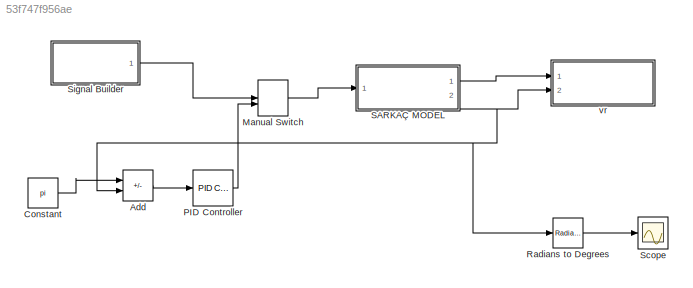
MODEL slx_53f747f956ae
KIND model
CONFIG AbsTol = auto
CONFIG EnableMultiTasking = off
CONFIG FixedStep = auto
CONFIG MaxStep = auto
CONFIG MinStep = auto
CONFIG RelTol = 1e-3
CONFIG SampleTimeConstraint = Unconstrained
CONFIG Solver = VariableStepAuto
CONFIG SolverName = VariableStepAuto
CONFIG StartTime = 0.0
CONFIG StopTime = 10.0
BLOCK [Sum] Add
  IconShape = rectangular
  Inputs = +-
  Ports = [2, 1]
BLOCK [Constant] Constant
  Value = pi
BLOCK [ManualSwitch] Manual Switch
  CurrentSetting = 0
BLOCK [Reference] PID Controller  REF=simulink/Continuous/PID Controller
  Ports = [1, 1]
  SourceBlock = simulink/Continuous/PID Controller
  SourceProductBaseCode = SL
  SourceType = PID 1dof
BLOCK [Reference] Radians to Degrees  REF=simulink_extras/Transformations/Radians
to Degrees
  Ports = [1, 1]
  SourceBlock = simulink_extras/Transformations/Radians\nto Degrees
  SourceProductBaseCode = SL
  SourceType = RadiansToDegrees
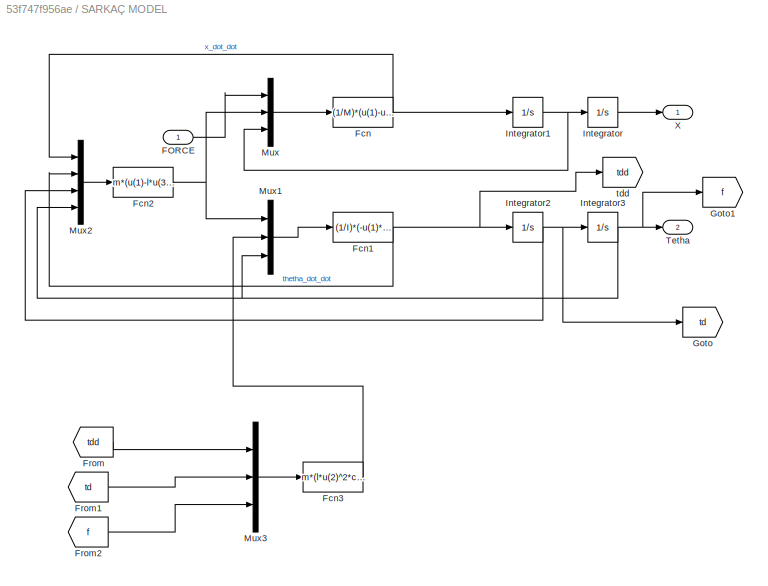
BLOCK [SubSystem] SARKAÇ MODEL
  Ports = [1, 2]
  RequestExecContextInheritance = off
BLOCK [Inport] SARKAÇ MODEL/FORCE
BLOCK [Fcn] SARKAÇ MODEL/Fcn
  Expr = (1/M)*(u(1)-u(2)-b*u(3))
BLOCK [Fcn] SARKAÇ MODEL/Fcn1
  Expr = (1/I)*(-u(1)*cos(u(3))-u(2)*I*sin(u(3)))
BLOCK [Fcn] SARKAÇ MODEL/Fcn2
  Expr = m*(u(1)-l*u(3)^2*sin(u(4))+l*u(2)*cos(u(4)))
BLOCK [Fcn] SARKAÇ MODEL/Fcn3
  Expr = m*(l*u(2)^2*cos(u(3))+l*u(1)*sin(u(3))+g)
BLOCK [From] SARKAÇ MODEL/From
  GotoTag = tdd
BLOCK [From] SARKAÇ MODEL/From1
  GotoTag = td
BLOCK [From] SARKAÇ MODEL/From2
  GotoTag = f
BLOCK [Goto] SARKAÇ MODEL/Goto
  GotoTag = td
BLOCK [Goto] SARKAÇ MODEL/Goto1
  GotoTag = f
BLOCK [Integrator] SARKAÇ MODEL/Integrator
  Ports = [1, 1]
BLOCK [Integrator] SARKAÇ MODEL/Integrator1
  Ports = [1, 1]
BLOCK [Integrator] SARKAÇ MODEL/Integrator2
  Ports = [1, 1]
BLOCK [Integrator] SARKAÇ MODEL/Integrator3
  InitialCondition = pi-0.1
  Ports = [1, 1]
BLOCK [Mux] SARKAÇ MODEL/Mux
  DisplayOption = bar
  Inputs = 3
  Ports = [3, 1]
BLOCK [Mux] SARKAÇ MODEL/Mux1
  DisplayOption = bar
  Inputs = 3
  Ports = [3, 1]
BLOCK [Mux] SARKAÇ MODEL/Mux2
  DisplayOption = bar
  Ports = [4, 1]
BLOCK [Mux] SARKAÇ MODEL/Mux3
  DisplayOption = bar
  Inputs = 3
  Ports = [3, 1]
BLOCK [Outport] SARKAÇ MODEL/Tetha
  Port = 2
BLOCK [Outport] SARKAÇ MODEL/X
BLOCK [Goto] SARKAÇ MODEL/tdd
  GotoTag = tdd
BLOCK [Scope] Scope
  Floating = off
  NumInputPorts = 1
  Ports = [1]
  ScopeSpecificationString = Simulink.scopes.TimeScopeBlockCfg('CurrentConfiguration', extmgr.ConfigurationSet(extmgr.Configuration('Core','General UI',true),extmgr.Configuration('Core','Source UI',true),extmgr.Configuration('Sources','WiredSimulink',true),extmgr.Configuration('Visuals','Time Domain',true,'SerializedDisplays',{struct('MinYLimReal','179.5704','MaxYLimReal','180.36163','YLabelReal','','MinYLimMag','179.5704','M...<+1420ch>
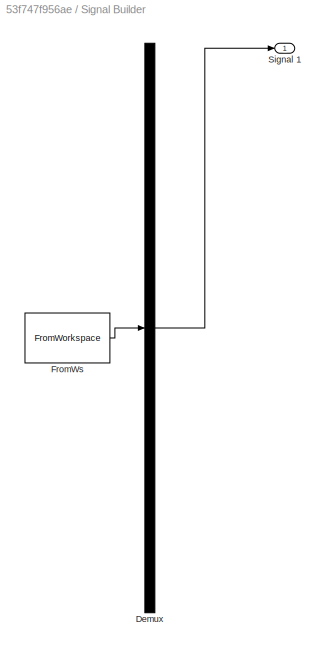
BLOCK [SubSystem] Signal Builder
  ClipboardFcn = sigbuilder_block('clipboard');
  CloseFcn = sigbuilder_block('close');
  ContinueFcn = sigbuilder_block('continue');
  CopyFcn = sigbuilder_block('copy');
  DeleteFcn = sigbuilder_block('delete');
  LoadFcn = sigbuilder_block('load');
  MaskHideContents = on
  ModelCloseFcn = sigbuilder_block('modelClose');
  NameChangeFcn = sigbuilder_block('namechange');
  OpenFcn = sigbuilder_block('open',[437.6 153 550.4 359.25 ]);
  PauseFcn = sigbuilder_block('pause');
  Ports = [0, 1]
  PreSaveFcn = sigbuilder_block('preSave');
  RequestExecContextInheritance = off
  StartFcn = sigbuilder_block('start');
  StopFcn = sigbuilder_block('stop');
  Tag = STV Subsys
BLOCK [Demux] Signal Builder/Demux
  DisplayOption = none
  Outputs = 1
  Ports = [1, 1]
  Tag = STV Demux
BLOCK [FromWorkspace] Signal Builder/FromWs
  Tag = STV FromWs
  VariableName = tuvar
BLOCK [Outport] Signal Builder/Signal 1
  Tag = STV Outport
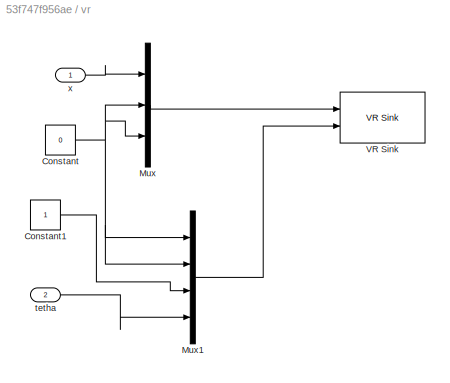
BLOCK [SubSystem] vr
  Ports = [2]
  RequestExecContextInheritance = off
BLOCK [Constant] vr/Constant
  Value = 0
BLOCK [Constant] vr/Constant1
BLOCK [Mux] vr/Mux
  DisplayOption = bar
  Inputs = 3
  Ports = [3, 1]
BLOCK [Mux] vr/Mux1
  DisplayOption = bar
  Ports = [4, 1]
BLOCK [Reference] vr/VR Sink  REF=vrlib/VR Sink
  InstantiateOnLoad = on
  Ports = [2]
  SourceBlock = vrlib/VR Sink
  SourceProductBaseCode = SL
  SourceType = Virtual Reality Sink
BLOCK [Inport] vr/tetha
  Port = 2
BLOCK [Inport] vr/x
LINE Add:1 -> PID Controller:1
LINE Constant:1 -> Add:1
LINE Manual Switch:1 -> SARKAÇ MODEL:1
LINE PID Controller:1 -> Manual Switch:2
LINE Radians to Degrees:1 -> Scope:1
LINE SARKAÇ MODEL/FORCE:1 -> SARKAÇ MODEL/Mux:1
NET SARKAÇ MODEL/Fcn1:1 -> SARKAÇ MODEL/Integrator2:1, SARKAÇ MODEL/Mux2:2, SARKAÇ MODEL/tdd:1
NET SARKAÇ MODEL/Fcn2:1 -> SARKAÇ MODEL/Mux1:1, SARKAÇ MODEL/Mux:2
LINE SARKAÇ MODEL/Fcn3:1 -> SARKAÇ MODEL/Mux1:2
NET SARKAÇ MODEL/Fcn:1 -> SARKAÇ MODEL/Integrator1:1, SARKAÇ MODEL/Mux2:1
LINE SARKAÇ MODEL/From1:1 -> SARKAÇ MODEL/Mux3:2
LINE SARKAÇ MODEL/From2:1 -> SARKAÇ MODEL/Mux3:3
LINE SARKAÇ MODEL/From:1 -> SARKAÇ MODEL/Mux3:1
NET SARKAÇ MODEL/Integrator1:1 -> SARKAÇ MODEL/Integrator:1, SARKAÇ MODEL/Mux:3
NET SARKAÇ MODEL/Integrator2:1 -> SARKAÇ MODEL/Goto:1, SARKAÇ MODEL/Integrator3:1, SARKAÇ MODEL/Mux2:3
NET SARKAÇ MODEL/Integrator3:1 -> SARKAÇ MODEL/Goto1:1, SARKAÇ MODEL/Mux1:3, SARKAÇ MODEL/Mux2:4, SARKAÇ MODEL/Tetha:1
LINE SARKAÇ MODEL/Integrator:1 -> SARKAÇ MODEL/X:1
LINE SARKAÇ MODEL/Mux1:1 -> SARKAÇ MODEL/Fcn1:1
LINE SARKAÇ MODEL/Mux2:1 -> SARKAÇ MODEL/Fcn2:1
LINE SARKAÇ MODEL/Mux3:1 -> SARKAÇ MODEL/Fcn3:1
LINE SARKAÇ MODEL/Mux:1 -> SARKAÇ MODEL/Fcn:1
LINE SARKAÇ MODEL:1 -> vr:1
NET SARKAÇ MODEL:2 -> Add:2, Radians to Degrees:1, vr:2
LINE Signal Builder:1 -> Manual Switch:1
LINE vr/Constant1:1 -> vr/Mux1:3
NET vr/Constant:1 -> vr/Mux1:1, vr/Mux1:2, vr/Mux:2, vr/Mux:3
LINE vr/Mux1:1 -> vr/VR Sink:2
LINE vr/Mux:1 -> vr/VR Sink:1
LINE vr/tetha:1 -> vr/Mux1:4
LINE vr/x:1 -> vr/Mux:1
note: NET lines group one-source signal fan-out (src -> all destinations, sorted); 1:1 wires keep LINE
